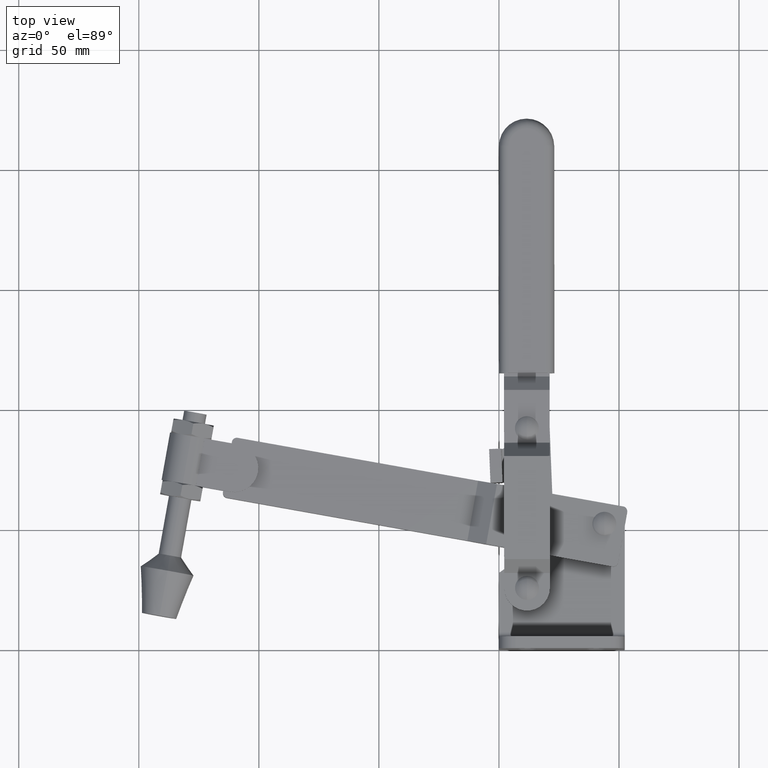
[diagram: clean part render]
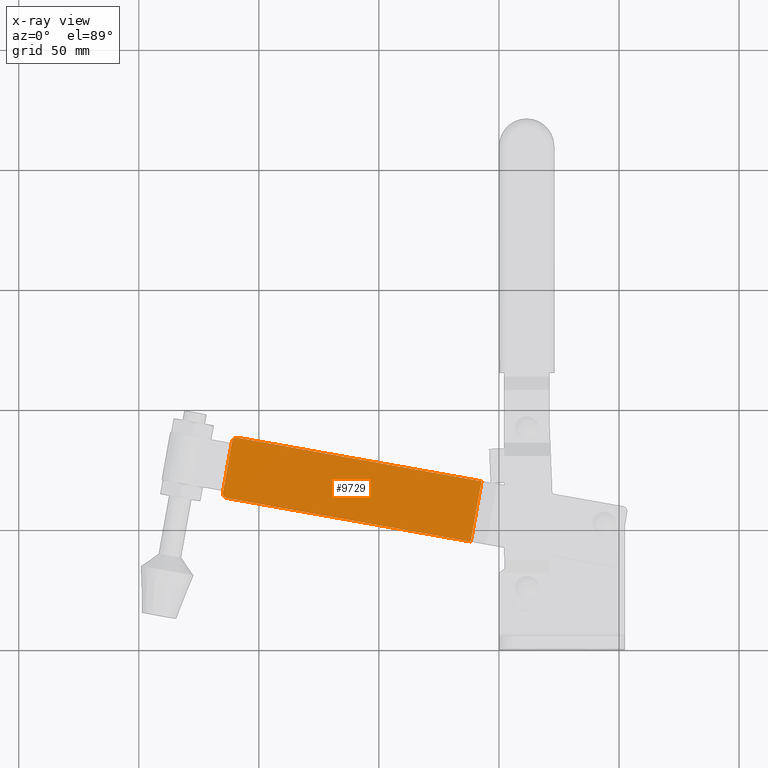
[diagram: x-ray — body ghosted, one internal face saturated and labeled with its STEP entity id]
A machine part, top view, then the same camera in x-ray: the body is ghosted and one INTERNAL B-rep face — a face not visible from any outside direction — is saturated and labeled: STEP entity #9729.
In plain terms, the highlighted planar face has unit normal (-0, 0, 1).
Its self-contained STEP definition (entity closure, byte-faithful):
#597 = ORIENTED_EDGE ( 'NONE', *, *, #1570, .T. ) ;
#610 = AXIS2_PLACEMENT_3D ( 'NONE', #9800, #9305, #6818 ) ;
#756 = DIRECTION ( 'NONE',  ( -0.1756928406069002400, -0.9844450344023673000, 1.751623080406021100E-046 ) ) ;
#986 = AXIS2_PLACEMENT_3D ( 'NONE', #6237, #1275, #7095 ) ;
#1275 = DIRECTION ( 'NONE',  ( 3.018990046090418900E-015, -5.387958884708930700E-016, -1.000000000000000000 ) ) ;
#1310 = ORIENTED_EDGE ( 'NONE', *, *, #3937, .F. ) ;
#1570 = EDGE_CURVE ( 'NONE', #5197, #8211, #2995, .T. ) ;
#1641 = VERTEX_POINT ( 'NONE', #9476 ) ;
#2056 = CARTESIAN_POINT ( 'NONE',  ( -33.00672260610759400, 48.65796366691414200, 5.000000020057636100E-005 ) ) ;
#2120 = CIRCLE ( 'NONE', #610, 1.999999999999679600 ) ;
#2414 = EDGE_CURVE ( 'NONE', #4513, #9440, #5755, .T. ) ;
#2559 = DIRECTION ( 'NONE',  ( -0.1756928406069002400, -0.9844450344023673000, 1.751623080406021100E-046 ) ) ;
#2895 = FACE_OUTER_BOUND ( 'NONE', #10223, .T. ) ;
#2995 = LINE ( 'NONE', #7880, #6613 ) ;
#3018 = CARTESIAN_POINT ( 'NONE',  ( -108.8792111549939100, 87.99967470973162200, 4.999999995032091700E-005 ) ) ;
#3113 = EDGE_CURVE ( 'NONE', #1641, #5197, #2120, .T. ) ;
#3371 = CARTESIAN_POINT ( 'NONE',  ( -126.2937204399133600, 14.51624712618481500, 4.999999993777294400E-005 ) ) ;
#3510 = ORIENTED_EDGE ( 'NONE', *, *, #4063, .F. ) ;
#3937 = EDGE_CURVE ( 'NONE', #9440, #8211, #8810, .T. ) ;
#4063 = EDGE_CURVE ( 'NONE', #1641, #5016, #4534, .T. ) ;
#4513 = VERTEX_POINT ( 'NONE', #7550 ) ;
#4534 = LINE ( 'NONE', #7864, #8668 ) ;
#5016 = VERTEX_POINT ( 'NONE', #6948 ) ;
#5197 = VERTEX_POINT ( 'NONE', #3018 ) ;
#5755 = LINE ( 'NONE', #2056, #6031 ) ;
#5857 = PLANE ( 'NONE',  #6046 ) ;
#6031 = VECTOR ( 'NONE', #9072, 1000.000000000000100 ) ;
#6046 = AXIS2_PLACEMENT_3D ( 'NONE', #3371, #7542, #2559 ) ;
#6153 = EDGE_CURVE ( 'NONE', #4513, #5016, #6605, .T. ) ;
#6237 = CARTESIAN_POINT ( 'NONE',  ( -112.9902837532006300, 64.96363594235118900, 4.999999995032135700E-005 ) ) ;
#6371 = VECTOR ( 'NONE', #10449, 1000.000000000000100 ) ;
#6605 = CIRCLE ( 'NONE', #986, 2.000000000000104400 ) ;
#6613 = VECTOR ( 'NONE', #7933, 1000.000000000000100 ) ;
#6818 = DIRECTION ( 'NONE',  ( -0.1756928406068951100, -0.9844450344023684100, 0.0000000000000000000 ) ) ;
#6824 = CARTESIAN_POINT ( 'NONE',  ( -7.283001686989476500, 69.86790908332990600, 5.000000026507346800E-005 ) ) ;
#6948 = CARTESIAN_POINT ( 'NONE',  ( -114.9704960237465300, 65.24427692934344200, 4.999999994419190900E-005 ) ) ;
#7095 = DIRECTION ( 'NONE',  ( -0.1756928406068994400, -0.9844450344023675200, 0.0000000000000000000 ) ) ;
#7208 = ORIENTED_EDGE ( 'NONE', *, *, #3113, .T. ) ;
#7542 = DIRECTION ( 'NONE',  ( -3.018990046090418900E-015, 5.387958884708930700E-016, 1.000000000000000000 ) ) ;
#7550 = CARTESIAN_POINT ( 'NONE',  ( -113.3449783766503600, 62.99533928684006400, 4.999999995031104400E-005 ) ) ;
#7864 = CARTESIAN_POINT ( 'NONE',  ( -110.8466980617195600, 88.35080997060276800, 4.999999994419190900E-005 ) ) ;
#7880 = CARTESIAN_POINT ( 'NONE',  ( 53.75251169035620800, 58.97496702112904600, 5.000000045694286900E-005 ) ) ;
#7919 = CARTESIAN_POINT ( 'NONE',  ( -11.74548878463740900, 44.86362746781821200, 5.000000026854291500E-005 ) ) ;
#7933 = DIRECTION ( 'NONE',  ( 0.9844450344023673000, -0.1756928406069002400, 3.066692339936656600E-015 ) ) ;
#7953 = ORIENTED_EDGE ( 'NONE', *, *, #6153, .T. ) ;
#8211 = VERTEX_POINT ( 'NONE', #6824 ) ;
#8668 = VECTOR ( 'NONE', #756, 1000.000000000000100 ) ;
#8782 = ORIENTED_EDGE ( 'NONE', *, *, #2414, .F. ) ;
#8810 = LINE ( 'NONE', #9487, #6371 ) ;
#9072 = DIRECTION ( 'NONE',  ( 0.9844461011701318700, -0.1756868631711725500, 3.066692339880125200E-015 ) ) ;
#9305 = DIRECTION ( 'NONE',  ( 3.018990046090418900E-015, -5.387958884708930700E-016, -1.000000000000000000 ) ) ;
#9440 = VERTEX_POINT ( 'NONE', #7919 ) ;
#9476 = CARTESIAN_POINT ( 'NONE',  ( -111.1848766422721700, 86.45592214696542000, 4.999999994419190900E-005 ) ) ;
#9487 = CARTESIAN_POINT ( 'NONE',  ( -7.283001686989476500, 69.86790908332990600, 5.000000026854291500E-005 ) ) ;
#9729 = ADVANCED_FACE ( 'NONE', ( #2895 ), #5857, .F. ) ;
#9800 = CARTESIAN_POINT ( 'NONE',  ( -109.2305848813362800, 86.03078250739167700, 4.999999995032095800E-005 ) ) ;
#10223 = EDGE_LOOP ( 'NONE', ( #7953, #3510, #7208, #597, #1310, #8782 ) ) ;
#10449 = DIRECTION ( 'NONE',  ( 0.1756928406069002400, 0.9844450344023673000, -1.751623080406021100E-046 ) ) ;